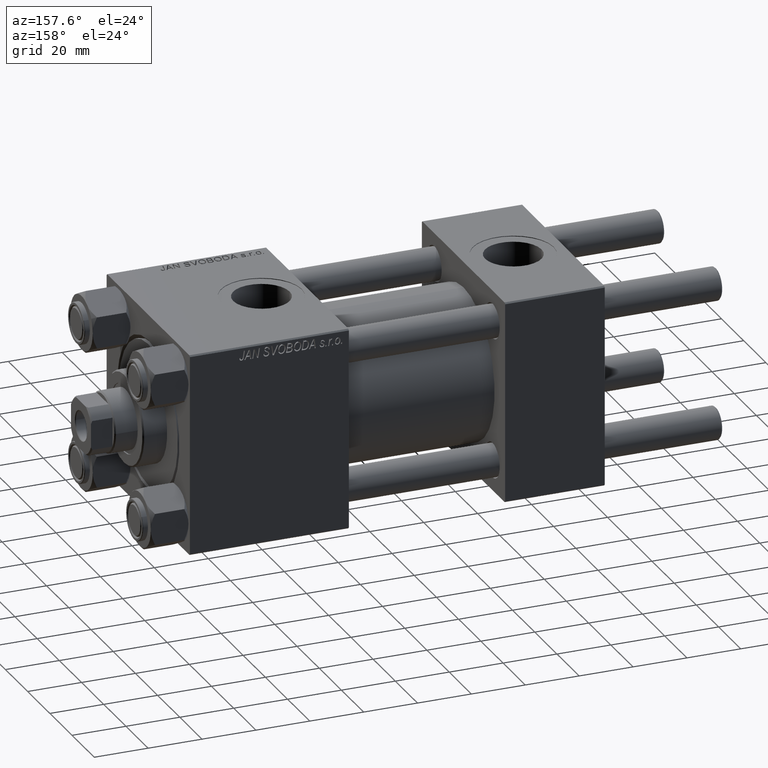
[diagram: clean part render]
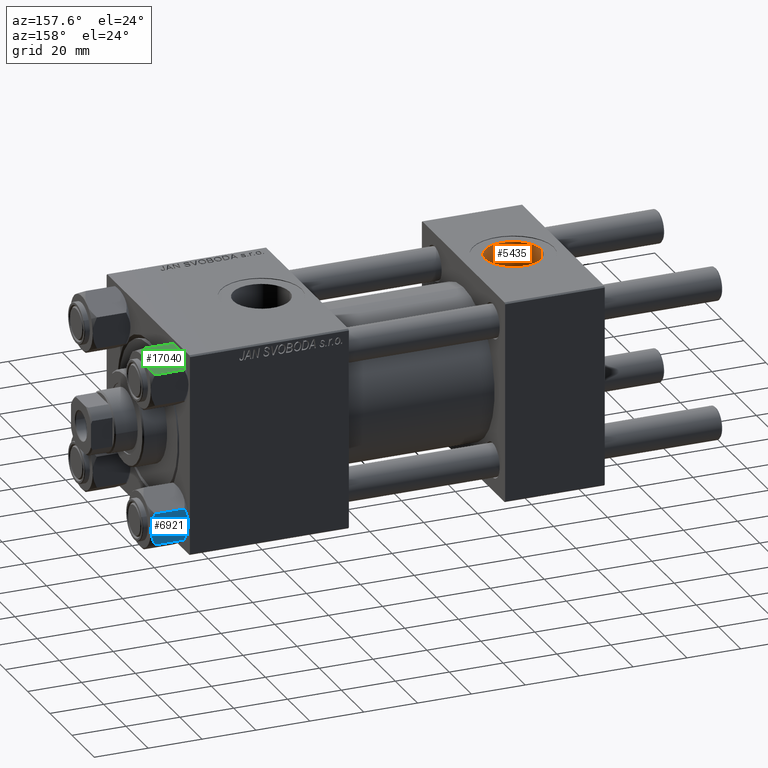
[diagram: same view with three faces highlighted in distinct colors, each labeled with its STEP entity id]
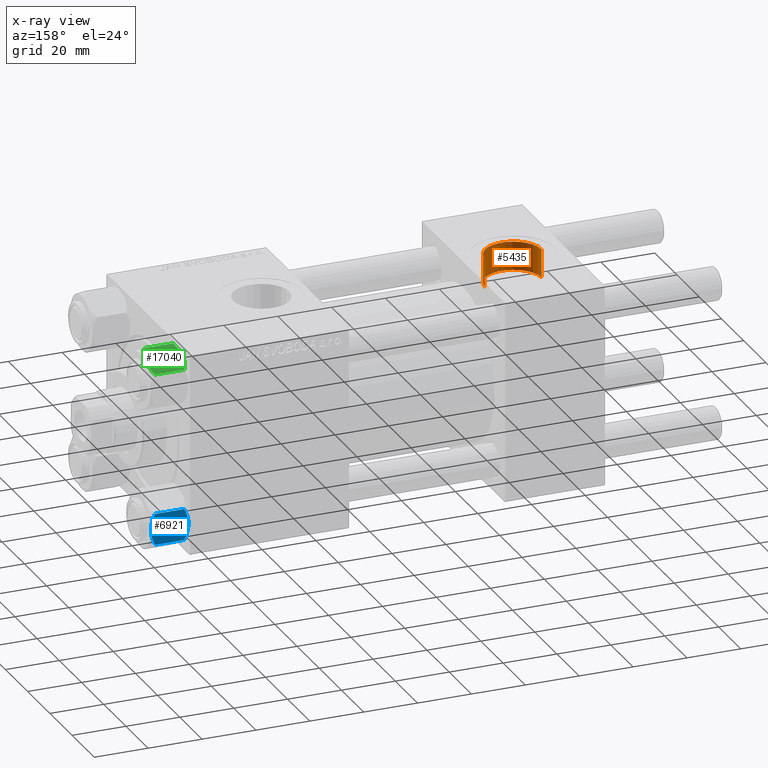
[diagram: x-ray of the same camera — body ghosted, the three highlighted faces saturated]
A machine part, auxiliary view with three faces highlighted in distinct colors.
The next image is the same camera in x-ray (body ghosted, the three faces saturated) — at least one of them is partly hidden behind the body in this view.
Their STEP definitions:

[orange] entity #5435 — the highlighted cylindrical surface (edge-blend (fillet) strip) has radius 10.48 mm, axis along (0, 0, 1).
#2047 = CARTESIAN_POINT ( 'NONE',  ( 28.98000000000000043, -5.204170427930421283E-15, 26.69999999999999929 ) ) ;
#2118 = CARTESIAN_POINT ( 'NONE',  ( 28.98000000000000043, -5.204170427930421283E-15, 26.69999999999999929 ) ) ;
#2888 = CARTESIAN_POINT ( 'NONE',  ( 18.50000000000000000, -5.204170427930421283E-15, 26.69999999999999929 ) ) ;
#4963 = EDGE_LOOP ( 'NONE', ( #30774, #33382, #5423, #13241 ) ) ;
#5055 = AXIS2_PLACEMENT_3D ( 'NONE', #2888, #46594, #6274 ) ;
#5423 = ORIENTED_EDGE ( 'NONE', *, *, #9880, .T. ) ;
#5435 = ADVANCED_FACE ( 'NONE', ( #34806 ), #39006, .F. ) ;
#5627 = DIRECTION ( 'NONE',  ( -0.000000000000000000, -0.000000000000000000, 1.000000000000000000 ) ) ;
#6148 = DIRECTION ( 'NONE',  ( 1.000000000000000000, 0.000000000000000000, 0.000000000000000000 ) ) ;
#6274 = DIRECTION ( 'NONE',  ( 1.000000000000000000, 0.000000000000000000, 0.000000000000000000 ) ) ;
#6538 = LINE ( 'NONE', #2118, #24263 ) ;
#9880 = EDGE_CURVE ( 'NONE', #30975, #24714, #19317, .T. ) ;
#10194 = CARTESIAN_POINT ( 'NONE',  ( 8.019999999999999574, -3.920740582423995006E-15, 37.29999999999999716 ) ) ;
#13241 = ORIENTED_EDGE ( 'NONE', *, *, #40397, .F. ) ;
#14503 = VERTEX_POINT ( 'NONE', #43858 ) ;
#15842 = VERTEX_POINT ( 'NONE', #2047 ) ;
#15926 = CARTESIAN_POINT ( 'NONE',  ( 28.98000000000000043, -5.204170427930421283E-15, 37.29999999999999716 ) ) ;
#17937 = CARTESIAN_POINT ( 'NONE',  ( 18.50000000000000000, -5.204170427930421283E-15, 37.29999999999999716 ) ) ;
#19317 = CIRCLE ( 'NONE', #36069, 10.48000000000000043 ) ;
#20735 = DIRECTION ( 'NONE',  ( 0.000000000000000000, 0.000000000000000000, 1.000000000000000000 ) ) ;
#22372 = DIRECTION ( 'NONE',  ( 0.000000000000000000, 0.000000000000000000, 1.000000000000000000 ) ) ;
#24263 = VECTOR ( 'NONE', #35081, 1000.000000000000000 ) ;
#24492 = CARTESIAN_POINT ( 'NONE',  ( 8.019999999999999574, -3.920740582423995006E-15, 26.69999999999999929 ) ) ;
#24714 = VERTEX_POINT ( 'NONE', #15926 ) ;
#26607 = EDGE_CURVE ( 'NONE', #14503, #15842, #43170, .T. ) ;
#28326 = DIRECTION ( 'NONE',  ( 1.000000000000000000, 0.000000000000000000, 0.000000000000000000 ) ) ;
#30774 = ORIENTED_EDGE ( 'NONE', *, *, #26607, .F. ) ;
#30975 = VERTEX_POINT ( 'NONE', #10194 ) ;
#31993 = CARTESIAN_POINT ( 'NONE',  ( 18.50000000000000000, -5.204170427930421283E-15, 26.69999999999999929 ) ) ;
#33382 = ORIENTED_EDGE ( 'NONE', *, *, #36136, .T. ) ;
#34806 = FACE_OUTER_BOUND ( 'NONE', #4963, .T. ) ;
#35081 = DIRECTION ( 'NONE',  ( -0.000000000000000000, -0.000000000000000000, 1.000000000000000000 ) ) ;
#36069 = AXIS2_PLACEMENT_3D ( 'NONE', #17937, #22372, #6148 ) ;
#36136 = EDGE_CURVE ( 'NONE', #14503, #30975, #36537, .T. ) ;
#36537 = LINE ( 'NONE', #24492, #47557 ) ;
#39006 = CYLINDRICAL_SURFACE ( 'NONE', #5055, 10.48000000000000043 ) ;
#40397 = EDGE_CURVE ( 'NONE', #15842, #24714, #6538, .T. ) ;
#43170 = CIRCLE ( 'NONE', #44842, 10.48000000000000043 ) ;
#43858 = CARTESIAN_POINT ( 'NONE',  ( 8.019999999999999574, -3.920740582423995006E-15, 26.69999999999999929 ) ) ;
#44842 = AXIS2_PLACEMENT_3D ( 'NONE', #31993, #20735, #28326 ) ;
#46594 = DIRECTION ( 'NONE',  ( -0.000000000000000000, -0.000000000000000000, 1.000000000000000000 ) ) ;
#47557 = VECTOR ( 'NONE', #5627, 1000.000000000000000 ) ;

[blue] entity #6921 — the highlighted planar face has unit normal (-0, -1, 0).
#79 = ORIENTED_EDGE ( 'NONE', *, *, #51735, .F. ) ;
#84 = B_SPLINE_CURVE_WITH_KNOTS ( 'NONE', 3,
 ( #31942, #11781, #11519, #32461, #27754, #20160 ),
 .UNSPECIFIED., .F., .F.,
 ( 4, 2, 4 ),
 ( 0.006022845781655588975, 0.009013049135303633289, 0.01200325248895167847 ),
 .UNSPECIFIED. ) ;
#849 = VERTEX_POINT ( 'NONE', #14766 ) ;
#1699 = CARTESIAN_POINT ( 'NONE',  ( -11.61999999999999922, 6.036006524886462134E-17, -14.00000000000000000 ) ) ;
#3677 = CARTESIAN_POINT ( 'NONE',  ( -11.61999999999999922, 4.243578825136429979E-17, -12.44321519197517922 ) ) ;
#3897 = LINE ( 'NONE', #16197, #17786 ) ;
#4217 = EDGE_CURVE ( 'NONE', #26335, #28256, #26144, .T. ) ;
#4276 = CARTESIAN_POINT ( 'NONE',  ( -5.810000000000003162, 10.06321519197517667, -1.556784808024824107 ) ) ;
#4410 = CARTESIAN_POINT ( 'NONE',  ( -6.265018354709781079, 9.275100283241448196, -12.89823354668503974 ) ) ;
#6034 = ORIENTED_EDGE ( 'NONE', *, *, #4217, .F. ) ;
#6425 = VERTEX_POINT ( 'NONE', #13393 ) ;
#6765 = CARTESIAN_POINT ( 'NONE',  ( -8.714999999999996305, 5.031607595987583004, 0.000000000000000000 ) ) ;
#6921 = ADVANCED_FACE ( 'NONE', ( #43949 ), #29169, .F. ) ;
#7639 = CARTESIAN_POINT ( 'NONE',  ( -8.714999999999996305, 5.031607595987583004, -14.00000000000000000 ) ) ;
#7895 = CARTESIAN_POINT ( 'NONE',  ( -9.227666995912102266, 4.143642311704122783, -13.96005881939308502 ) ) ;
#8650 = VECTOR ( 'NONE', #20904, 1000.000000000000000 ) ;
#9547 = DIRECTION ( 'NONE',  ( 0.8660254037844388186, -0.4999999999999996669, 0.000000000000000000 ) ) ;
#10406 = EDGE_CURVE ( 'NONE', #18848, #849, #49473, .T. ) ;
#10674 = ORIENTED_EDGE ( 'NONE', *, *, #48143, .F. ) ;
#10875 = AXIS2_PLACEMENT_3D ( 'NONE', #1699, #9547, #24023 ) ;
#11519 = CARTESIAN_POINT ( 'NONE',  ( -9.716999946243696229, 3.296092779912225712, -0.1545239700039918174 ) ) ;
#11595 = CARTESIAN_POINT ( 'NONE',  ( -8.714999999999996305, 5.031607595987583004, 0.000000000000000000 ) ) ;
#11781 = CARTESIAN_POINT ( 'NONE',  ( -9.220295946303432189, 4.156409344131450467, -4.650210880426107284E-15 ) ) ;
#12338 = CARTESIAN_POINT ( 'NONE',  ( -11.61999999999999922, 4.243578825136429979E-17, -12.44321519197517922 ) ) ;
#12935 = CARTESIAN_POINT ( 'NONE',  ( -5.810000000000003162, 10.06321519197517667, -1.556784808024824107 ) ) ;
#12993 = VERTEX_POINT ( 'NONE', #22758 ) ;
#13131 = EDGE_CURVE ( 'NONE', #18848, #6425, #3897, .T. ) ;
#13393 = CARTESIAN_POINT ( 'NONE',  ( -11.61999999999999922, -1.565987599140169687E-18, -1.556784808024820776 ) ) ;
#14766 = CARTESIAN_POINT ( 'NONE',  ( -8.714999999999996305, 5.031607595987583004, -14.00000000000000000 ) ) ;
#16175 = CARTESIAN_POINT ( 'NONE',  ( -8.209704053696571080, 5.906805847843720869, -13.99999999999999112 ) ) ;
#16197 = CARTESIAN_POINT ( 'NONE',  ( -11.61999999999999922, 6.036006524886462134E-17, -14.00000000000000000 ) ) ;
#16713 = CARTESIAN_POINT ( 'NONE',  ( -5.810000000000003162, 10.06321519197517667, -14.00000000000000000 ) ) ;
#17485 = ORIENTED_EDGE ( 'NONE', *, *, #44714, .F. ) ;
#17786 = VECTOR ( 'NONE', #19856, 1000.000000000000000 ) ;
#18848 = VERTEX_POINT ( 'NONE', #3677 ) ;
#19856 = DIRECTION ( 'NONE',  ( -0.000000000000000000, -0.000000000000000000, 1.000000000000000000 ) ) ;
#20160 = CARTESIAN_POINT ( 'NONE',  ( -11.61999999999999922, -1.565987599140169687E-18, -1.556784808024820776 ) ) ;
#20904 = DIRECTION ( 'NONE',  ( -0.000000000000000000, -0.000000000000000000, 1.000000000000000000 ) ) ;
#22510 = EDGE_LOOP ( 'NONE', ( #36331, #50314, #17485, #6034, #79, #10674 ) ) ;
#22758 = CARTESIAN_POINT ( 'NONE',  ( -5.810000000000004050, 10.06321519197517667, -12.44321519197517745 ) ) ;
#23762 = CARTESIAN_POINT ( 'NONE',  ( -5.810000000000004050, 10.06321519197517667, -12.44321519197517745 ) ) ;
#24023 = DIRECTION ( 'NONE',  ( 0.4999999999999996669, 0.8660254037844388186, 0.000000000000000000 ) ) ;
#26144 = B_SPLINE_CURVE_WITH_KNOTS ( 'NONE', 3,
 ( #4276, #35689, #27565, #31501, #44595, #32535, #44083, #11595 ),
 .UNSPECIFIED., .F., .F.,
 ( 4, 2, 2, 4 ),
 ( 2.544312114906334931E-07, 0.003011550106433540791, 0.004517197944044565316, 0.006022845781655588975 ),
 .UNSPECIFIED. ) ;
#26335 = VERTEX_POINT ( 'NONE', #12935 ) ;
#27565 = CARTESIAN_POINT ( 'NONE',  ( -6.731401448974991375, 8.467301068182912616, -0.7141438259524754972 ) ) ;
#27754 = CARTESIAN_POINT ( 'NONE',  ( -11.16498164529022219, 0.7881149087337291359, -1.101766453314959815 ) ) ;
#28256 = VERTEX_POINT ( 'NONE', #6765 ) ;
#29169 = PLANE ( 'NONE',  #10875 ) ;
#29876 = B_SPLINE_CURVE_WITH_KNOTS ( 'NONE', 3,
 ( #51540, #16175, #43948, #39494, #4410, #23762 ),
 .UNSPECIFIED., .F., .F.,
 ( 4, 2, 4 ),
 ( 0.006022845781655582036, 0.009013049135303628084, 0.01200325248895167327 ),
 .UNSPECIFIED. ) ;
#31501 = CARTESIAN_POINT ( 'NONE',  ( -7.455303369716808959, 7.213466161761383333, -0.3002673809867471566 ) ) ;
#31942 = CARTESIAN_POINT ( 'NONE',  ( -8.714999999999996305, 5.031607595987583004, 0.000000000000000000 ) ) ;
#32461 = CARTESIAN_POINT ( 'NONE',  ( -10.69662495661650325, 1.599332489581332339, -0.7114554706434570441 ) ) ;
#32535 = CARTESIAN_POINT ( 'NONE',  ( -8.202333004087902779, 5.919572880271050330, -0.03994118060691660005 ) ) ;
#33459 = CARTESIAN_POINT ( 'NONE',  ( -11.16445427487471775, 0.7890283410877965142, -12.89876091710046069 ) ) ;
#35689 = CARTESIAN_POINT ( 'NONE',  ( -6.265545725125286403, 9.274186850887382150, -1.101239082899542421 ) ) ;
#36331 = ORIENTED_EDGE ( 'NONE', *, *, #10406, .F. ) ;
#39494 = CARTESIAN_POINT ( 'NONE',  ( -6.733375043383501790, 8.463882702393842550, -13.28854452935654251 ) ) ;
#40375 = CARTESIAN_POINT ( 'NONE',  ( -10.69859855102501278, 1.595914123792263162, -13.28585617404753094 ) ) ;
#43783 = CARTESIAN_POINT ( 'NONE',  ( -9.729165168613654657, 3.275021996682081049, -13.80960203119265195 ) ) ;
#43948 = CARTESIAN_POINT ( 'NONE',  ( -7.713000053756310592, 6.767122412062951398, -13.84547602999601068 ) ) ;
#43949 = FACE_OUTER_BOUND ( 'NONE', #22510, .T. ) ;
#44042 = CARTESIAN_POINT ( 'NONE',  ( -9.974696630283190757, 2.849749030213791556, -13.69973261901325223 ) ) ;
#44083 = CARTESIAN_POINT ( 'NONE',  ( -8.460569896449618099, 5.472293462311861312, -4.841640326505579160E-15 ) ) ;
#44595 = CARTESIAN_POINT ( 'NONE',  ( -7.700834831386347723, 6.788193195293092508, -0.1903979688073504373 ) ) ;
#44714 = EDGE_CURVE ( 'NONE', #28256, #6425, #84, .T. ) ;
#48143 = EDGE_CURVE ( 'NONE', #849, #12993, #29876, .T. ) ;
#48679 = LINE ( 'NONE', #16713, #8650 ) ;
#49457 = CARTESIAN_POINT ( 'NONE',  ( -8.969430103550386946, 4.590921729663310913, -13.99999999999999289 ) ) ;
#49473 = B_SPLINE_CURVE_WITH_KNOTS ( 'NONE', 3,
 ( #12338, #33459, #40375, #44042, #43783, #7895, #49457, #7639 ),
 .UNSPECIFIED., .F., .F.,
 ( 4, 2, 2, 4 ),
 ( 2.544312114905219494E-07, 0.003011550106433534719, 0.004517197944044558378, 0.006022845781655582036 ),
 .UNSPECIFIED. ) ;
#50314 = ORIENTED_EDGE ( 'NONE', *, *, #13131, .T. ) ;
#51540 = CARTESIAN_POINT ( 'NONE',  ( -8.714999999999996305, 5.031607595987583004, -14.00000000000000000 ) ) ;
#51735 = EDGE_CURVE ( 'NONE', #12993, #26335, #48679, .T. ) ;

[green] entity #17040 — the highlighted planar face has unit normal (-0, -0.5, -0.866).
#2395 = CARTESIAN_POINT ( 'NONE',  ( -6.009258394948640858E-15, 10.06321519197518022, 0.000000000000000000 ) ) ;
#7687 = EDGE_CURVE ( 'NONE', #46947, #26335, #37720, .T. ) ;
#8650 = VECTOR ( 'NONE', #20904, 1000.000000000000000 ) ;
#8684 = CARTESIAN_POINT ( 'NONE',  ( 3.474497094393246055, 10.06321519197518199, -0.5726960901042849050 ) ) ;
#9015 = VERTEX_POINT ( 'NONE', #47307 ) ;
#9681 = CARTESIAN_POINT ( 'NONE',  ( -4.908816193182384602, 10.06321519197518022, -1.106192904616017048 ) ) ;
#10051 = VERTEX_POINT ( 'NONE', #34945 ) ;
#10417 = VECTOR ( 'NONE', #48247, 1000.000000000000000 ) ;
#10451 = CARTESIAN_POINT ( 'NONE',  ( -2.508586450168046156, 10.06321519197518022, -0.2975752632032391820 ) ) ;
#12511 = CARTESIAN_POINT ( 'NONE',  ( 3.960942496020599002, 10.06321519197518199, -13.28842716763894671 ) ) ;
#12604 = CARTESIAN_POINT ( 'NONE',  ( 3.958929922320414185, 10.06321519197518377, -0.7421398502354088489 ) ) ;
#12929 = CARTESIAN_POINT ( 'NONE',  ( -4.900668367960797411, 10.06321519197517667, -12.87844331629021966 ) ) ;
#12935 = CARTESIAN_POINT ( 'NONE',  ( -5.810000000000003162, 10.06321519197517667, -1.556784808024824107 ) ) ;
#12993 = VERTEX_POINT ( 'NONE', #22758 ) ;
#13028 = CARTESIAN_POINT ( 'NONE',  ( 1.772424303831120707, 10.06321519197518022, -13.86611290782775541 ) ) ;
#13244 = CARTESIAN_POINT ( 'NONE',  ( -5.810000000000003162, 10.06321519197517667, -14.00000000000000000 ) ) ;
#13863 = CARTESIAN_POINT ( 'NONE',  ( -5.810000000000003162, 10.06321519197517667, -1.556784808024824107 ) ) ;
#13954 = CARTESIAN_POINT ( 'NONE',  ( -3.958929922320423067, 10.06321519197517489, -13.25786014976459626 ) ) ;
#14619 = EDGE_CURVE ( 'NONE', #12993, #9015, #27265, .T. ) ;
#15753 = CARTESIAN_POINT ( 'NONE',  ( 2.013954290287958138, 10.06321519197518377, -0.1570111679760076706 ) ) ;
#16713 = CARTESIAN_POINT ( 'NONE',  ( -5.810000000000003162, 10.06321519197517667, -14.00000000000000000 ) ) ;
#17040 = ADVANCED_FACE ( 'NONE', ( #37591 ), #33141, .F. ) ;
#18637 = EDGE_CURVE ( 'NONE', #10051, #47319, #31992, .T. ) ;
#20379 = CARTESIAN_POINT ( 'NONE',  ( 0.5112014849988854026, 10.06321519197518022, -13.99019602057108003 ) ) ;
#20904 = DIRECTION ( 'NONE',  ( -0.000000000000000000, -0.000000000000000000, 1.000000000000000000 ) ) ;
#21324 = EDGE_LOOP ( 'NONE', ( #22409, #32241, #35586, #28826, #26006, #32192 ) ) ;
#22409 = ORIENTED_EDGE ( 'NONE', *, *, #14619, .F. ) ;
#22480 = CARTESIAN_POINT ( 'NONE',  ( -0.2543996698847555971, 10.06321519197517844, -8.687169907040107433E-15 ) ) ;
#22758 = CARTESIAN_POINT ( 'NONE',  ( -5.810000000000004050, 10.06321519197517667, -12.44321519197517745 ) ) ;
#22881 = EDGE_CURVE ( 'NONE', #47319, #46947, #39027, .T. ) ;
#24036 = CARTESIAN_POINT ( 'NONE',  ( 2.508586450168036386, 10.06321519197518199, -13.70242473679676287 ) ) ;
#24732 = EDGE_CURVE ( 'NONE', #9015, #10051, #25069, .T. ) ;
#25069 = B_SPLINE_CURVE_WITH_KNOTS ( 'NONE', 3,
 ( #48406, #31894, #20379, #32413, #13028, #24036, #12511, #44216, #32163 ),
 .UNSPECIFIED., .F., .F.,
 ( 4, 2, 1, 2, 4 ),
 ( 0.02074012592819902273, 0.02149589804477578664, 0.02225167016135255055, 0.02376321439450608183, 0.02678630286081314094 ),
 .UNSPECIFIED. ) ;
#25291 = DIRECTION ( 'NONE',  ( 1.000000000000000000, 5.971509383741162381E-16, 0.000000000000000000 ) ) ;
#25994 = CARTESIAN_POINT ( 'NONE',  ( -5.810000000000004050, 10.06321519197517667, -12.44321519197517745 ) ) ;
#26006 = ORIENTED_EDGE ( 'NONE', *, *, #18637, .F. ) ;
#26335 = VERTEX_POINT ( 'NONE', #12935 ) ;
#27265 = B_SPLINE_CURVE_WITH_KNOTS ( 'NONE', 3,
 ( #25994, #49324, #12929, #13954, #33589, #49587, #45388, #37783 ),
 .UNSPECIFIED., .F., .F.,
 ( 4, 2, 2, 4 ),
 ( 0.01467889604968878811, 0.01619420351931634763, 0.01770951098894390716, 0.02074012592819902273 ),
 .UNSPECIFIED. ) ;
#28826 = ORIENTED_EDGE ( 'NONE', *, *, #22881, .F. ) ;
#29306 = CARTESIAN_POINT ( 'NONE',  ( -1.772424303831134917, 10.06321519197518022, -0.1338870921722490892 ) ) ;
#31894 = CARTESIAN_POINT ( 'NONE',  ( 0.2543996698847451055, 10.06321519197518199, -13.99999999999999289 ) ) ;
#31992 = LINE ( 'NONE', #32256, #10417 ) ;
#32163 = CARTESIAN_POINT ( 'NONE',  ( 5.809999999999994280, 10.06321519197518377, -12.44321519197517389 ) ) ;
#32192 = ORIENTED_EDGE ( 'NONE', *, *, #24732, .F. ) ;
#32241 = ORIENTED_EDGE ( 'NONE', *, *, #51735, .T. ) ;
#32256 = CARTESIAN_POINT ( 'NONE',  ( 5.809999999999995168, 10.06321519197518377, -14.00000000000000000 ) ) ;
#32413 = CARTESIAN_POINT ( 'NONE',  ( 1.018274738099081977, 10.06321519197517844, -13.95177257919928415 ) ) ;
#32914 = AXIS2_PLACEMENT_3D ( 'NONE', #13244, #44944, #25291 ) ;
#33141 = PLANE ( 'NONE',  #32914 ) ;
#33495 = CARTESIAN_POINT ( 'NONE',  ( -0.5112014849988953946, 10.06321519197518199, -0.009803979428924322267 ) ) ;
#33589 = CARTESIAN_POINT ( 'NONE',  ( -3.474497094393259378, 10.06321519197517844, -13.42730390989571809 ) ) ;
#34945 = CARTESIAN_POINT ( 'NONE',  ( 5.809999999999994280, 10.06321519197518377, -12.44321519197517389 ) ) ;
#35586 = ORIENTED_EDGE ( 'NONE', *, *, #7687, .F. ) ;
#35658 = CARTESIAN_POINT ( 'NONE',  ( 5.359707691559670195, 10.06321519197518199, -1.331638653804663619 ) ) ;
#37591 = FACE_OUTER_BOUND ( 'NONE', #21324, .T. ) ;
#37720 = B_SPLINE_CURVE_WITH_KNOTS ( 'NONE', 3,
 ( #50263, #22480, #33495, #46321, #29306, #10451, #38465, #9681, #13863 ),
 .UNSPECIFIED., .F., .F.,
 ( 4, 2, 1, 2, 4 ),
 ( 0.02074012592819901926, 0.02149589804477578317, 0.02225167016135255055, 0.02376321439450607836, 0.02678630286081313747 ),
 .UNSPECIFIED. ) ;
#37783 = CARTESIAN_POINT ( 'NONE',  ( -6.009258394948640858E-15, 10.06321519197518022, -14.00000000000000000 ) ) ;
#38465 = CARTESIAN_POINT ( 'NONE',  ( -3.960942496020607884, 10.06321519197517844, -0.7115728323610508443 ) ) ;
#39027 = B_SPLINE_CURVE_WITH_KNOTS ( 'NONE', 3,
 ( #47979, #35658, #39858, #12604, #8684, #15753, #39599, #39342 ),
 .UNSPECIFIED., .F., .F.,
 ( 4, 2, 2, 4 ),
 ( 0.01467889604968878464, 0.01619420351931634416, 0.01770951098894390369, 0.02074012592819901926 ),
 .UNSPECIFIED. ) ;
#39342 = CARTESIAN_POINT ( 'NONE',  ( -6.009258394948640858E-15, 10.06321519197518022, 0.000000000000000000 ) ) ;
#39599 = CARTESIAN_POINT ( 'NONE',  ( 1.020132157807618345, 10.06321519197518022, -8.626183534837794653E-15 ) ) ;
#39858 = CARTESIAN_POINT ( 'NONE',  ( 4.900668367960789418, 10.06321519197518732, -1.121556683709783231 ) ) ;
#44216 = CARTESIAN_POINT ( 'NONE',  ( 4.908816193182378385, 10.06321519197518199, -12.89380709538398406 ) ) ;
#44944 = DIRECTION ( 'NONE',  ( 5.971509383741162381E-16, -1.000000000000000000, 0.000000000000000000 ) ) ;
#45388 = CARTESIAN_POINT ( 'NONE',  ( -1.020132157807628781, 10.06321519197518022, -13.99999999999999467 ) ) ;
#46321 = CARTESIAN_POINT ( 'NONE',  ( -1.018274738099091303, 10.06321519197518022, -0.04822742080071992093 ) ) ;
#46947 = VERTEX_POINT ( 'NONE', #2395 ) ;
#47307 = CARTESIAN_POINT ( 'NONE',  ( -6.009258394948640858E-15, 10.06321519197518022, -14.00000000000000000 ) ) ;
#47319 = VERTEX_POINT ( 'NONE', #48384 ) ;
#47979 = CARTESIAN_POINT ( 'NONE',  ( 5.809999999999995168, 10.06321519197518377, -1.556784808024826106 ) ) ;
#48247 = DIRECTION ( 'NONE',  ( -0.000000000000000000, -0.000000000000000000, 1.000000000000000000 ) ) ;
#48384 = CARTESIAN_POINT ( 'NONE',  ( 5.809999999999995168, 10.06321519197518377, -1.556784808024826106 ) ) ;
#48406 = CARTESIAN_POINT ( 'NONE',  ( -6.009258394948640858E-15, 10.06321519197518022, -14.00000000000000000 ) ) ;
#48679 = LINE ( 'NONE', #16713, #8650 ) ;
#49324 = CARTESIAN_POINT ( 'NONE',  ( -5.359707691559678189, 10.06321519197518022, -12.66836134619534171 ) ) ;
#49587 = CARTESIAN_POINT ( 'NONE',  ( -2.013954290287971460, 10.06321519197518022, -13.84298883202399466 ) ) ;
#50263 = CARTESIAN_POINT ( 'NONE',  ( -6.009258394948640858E-15, 10.06321519197518022, 0.000000000000000000 ) ) ;
#51735 = EDGE_CURVE ( 'NONE', #12993, #26335, #48679, .T. ) ;